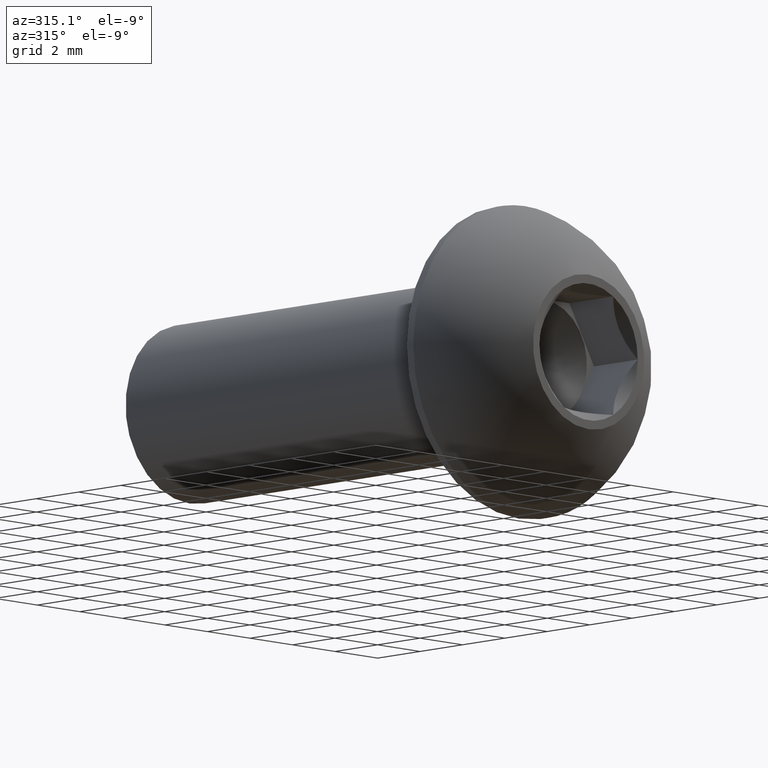
[diagram: clean part render]
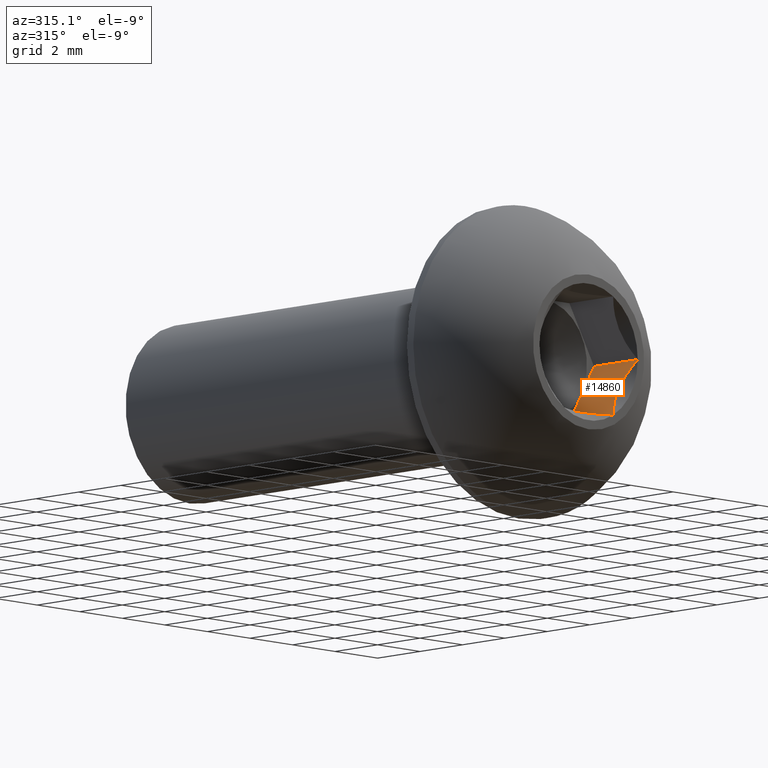
[diagram: same view with one face highlighted and labeled with its STEP entity id]
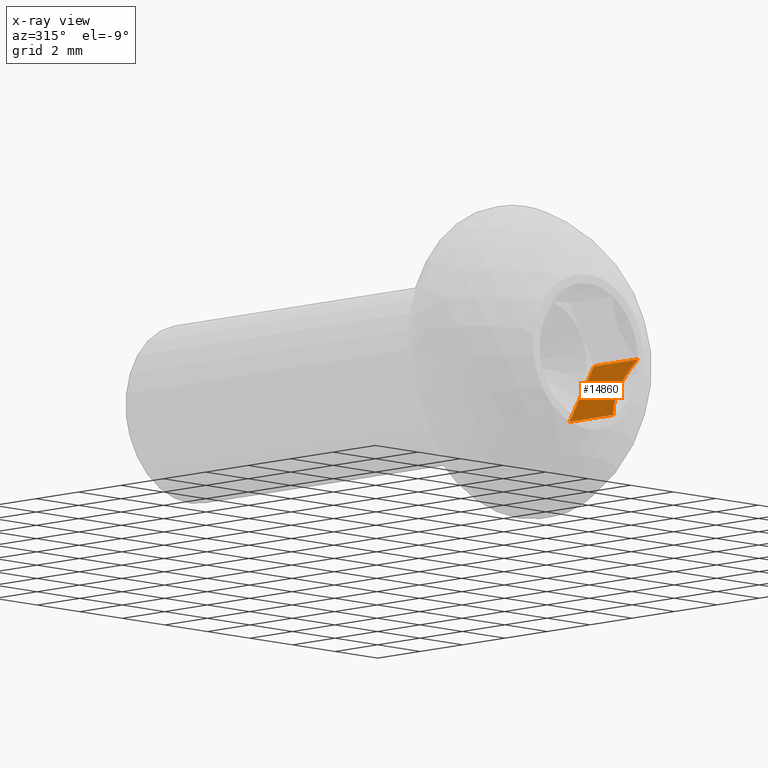
[diagram: x-ray of the same camera — body ghosted, the highlighted face saturated]
A machine part, auxiliary view. The second image highlights one B-rep face of the part: STEP entity #14860.
The next image is the same camera in x-ray: the body ghosted, the highlighted face saturated — about 1% of this face is hidden behind the body in this view.
In plain terms, the highlighted planar face has unit normal (0.866, 0, -0.5).
Its self-contained STEP definition (entity closure, byte-faithful):
#333 = VERTEX_POINT ( 'NONE', #14070 ) ;
#340 = EDGE_CURVE ( 'NONE', #333, #8891, #12877, .T. ) ;
#909 = CARTESIAN_POINT ( 'NONE',  ( 1.934985545853182200, 0.2709947582014008400, -0.6485067226708510800 ) ) ;
#959 = CARTESIAN_POINT ( 'NONE',  ( 2.309401076758477200, 0.0000000000000000000, -4.329725882211680000E-016 ) ) ;
#1144 = PLANE ( 'NONE',  #9792 ) ;
#2096 = ORIENTED_EDGE ( 'NONE', *, *, #340, .F. ) ;
#2223 = CARTESIAN_POINT ( 'NONE',  ( 1.154700538379232100, 2.062499999999999600, -2.000000000000000900 ) ) ;
#3111 = EDGE_CURVE ( 'NONE', #8891, #6651, #5275, .T. ) ;
#3194 = ORIENTED_EDGE ( 'NONE', *, *, #3220, .T. ) ;
#3220 = EDGE_CURVE ( 'NONE', #6170, #6651, #13193, .T. ) ;
#3390 = CARTESIAN_POINT ( 'NONE',  ( 1.154700538379223500, 0.0000000000000000000, -2.000000000000016000 ) ) ;
#3526 = CARTESIAN_POINT ( 'NONE',  ( 2.309401076758477200, 2.062499999999999600, -4.329725882211680000E-016 ) ) ;
#4282 = FACE_OUTER_BOUND ( 'NONE', #8942, .T. ) ;
#4416 = CARTESIAN_POINT ( 'NONE',  ( 2.126928016055928500, 0.1669275899206298700, -0.3160526121494167100 ) ) ;
#4870 = VECTOR ( 'NONE', #15351, 1000.000000000000000 ) ;
#5275 = B_SPLINE_CURVE_WITH_KNOTS ( 'NONE', 3,
 ( #959, #5684, #4416, #15358, #909, #14025, #8168, #10455, #12710, #13970, #6885, #3390 ),
 .UNSPECIFIED., .F., .F.,
 ( 4, 2, 2, 2, 2, 4 ),
 ( 2.544349856170600700E-007, 0.0005966331004600517900, 0.0008948224331972693800, 0.001193011765934487200, 0.001789390431408922300, 0.002385769096883357500 ),
 .UNSPECIFIED. ) ;
#5580 = VECTOR ( 'NONE', #11341, 1000.000000000000100 ) ;
#5623 = CARTESIAN_POINT ( 'NONE',  ( 1.154700538379232100, 2.062499999999999600, -2.000000000000000900 ) ) ;
#5684 = CARTESIAN_POINT ( 'NONE',  ( 2.219182151635831400, 0.09021892512267321000, -0.1562637621166766400 ) ) ;
#6170 = VERTEX_POINT ( 'NONE', #10480 ) ;
#6651 = VERTEX_POINT ( 'NONE', #12430 ) ;
#6885 = CARTESIAN_POINT ( 'NONE',  ( 1.245451299245582200, 0.09075076086680117200, -1.842815071353949100 ) ) ;
#8168 = CARTESIAN_POINT ( 'NONE',  ( 1.784578465267425000, 0.3091822087746347600, -0.9090194280634901200 ) ) ;
#8270 = DIRECTION ( 'NONE',  ( 0.0000000000000000000, -1.000000000000000000, 0.0000000000000000000 ) ) ;
#8883 = VECTOR ( 'NONE', #8270, 1000.000000000000000 ) ;
#8891 = VERTEX_POINT ( 'NONE', #9102 ) ;
#8942 = EDGE_LOOP ( 'NONE', ( #2096, #10080, #3194, #11764 ) ) ;
#9102 = CARTESIAN_POINT ( 'NONE',  ( 2.309401076758477200, 0.0000000000000000000, -4.329725882211680000E-016 ) ) ;
#9349 = DIRECTION ( 'NONE',  ( -0.4999999999999977200, 0.0000000000000000000, -0.8660254037844398200 ) ) ;
#9405 = EDGE_CURVE ( 'NONE', #6170, #333, #14357, .T. ) ;
#9792 = AXIS2_PLACEMENT_3D ( 'NONE', #2223, #10541, #9349 ) ;
#10080 = ORIENTED_EDGE ( 'NONE', *, *, #9405, .F. ) ;
#10455 = CARTESIAN_POINT ( 'NONE',  ( 1.633374704908074700, 0.3098252479567656400, -1.170912023301353700 ) ) ;
#10480 = CARTESIAN_POINT ( 'NONE',  ( 1.154700538379232100, 2.062499999999999600, -2.000000000000000900 ) ) ;
#10541 = DIRECTION ( 'NONE',  ( 0.8660254037844399300, 0.0000000000000000000, -0.4999999999999977800 ) ) ;
#10606 = CARTESIAN_POINT ( 'NONE',  ( 1.154700538379232100, 2.062499999999999600, -2.000000000000000900 ) ) ;
#11341 = DIRECTION ( 'NONE',  ( 0.4999999999999977800, 0.0000000000000000000, 0.8660254037844398200 ) ) ;
#11764 = ORIENTED_EDGE ( 'NONE', *, *, #3111, .F. ) ;
#12430 = CARTESIAN_POINT ( 'NONE',  ( 1.154700538379223500, 0.0000000000000000000, -2.000000000000016000 ) ) ;
#12710 = CARTESIAN_POINT ( 'NONE',  ( 1.534293179749486300, 0.2792985613756313000, -1.342526258967445400 ) ) ;
#12877 = LINE ( 'NONE', #3526, #4870 ) ;
#13193 = LINE ( 'NONE', #10606, #8883 ) ;
#13970 = CARTESIAN_POINT ( 'NONE',  ( 1.338892124838637200, 0.1685650473658849000, -1.680970813925594300 ) ) ;
#14025 = CARTESIAN_POINT ( 'NONE',  ( 1.835708118644007200, 0.3010809727709111700, -0.8204602706418642200 ) ) ;
#14070 = CARTESIAN_POINT ( 'NONE',  ( 2.309401076758477200, 2.062499999999999600, -4.329725882211680000E-016 ) ) ;
#14357 = LINE ( 'NONE', #5623, #5580 ) ;
#14860 = ADVANCED_FACE ( 'NONE', ( #4282 ), #1144, .F. ) ;
#15351 = DIRECTION ( 'NONE',  ( 0.0000000000000000000, -1.000000000000000000, 0.0000000000000000000 ) ) ;
#15358 = CARTESIAN_POINT ( 'NONE',  ( 1.983596481850121700, 0.2491289938367703100, -0.5643101117206726900 ) ) ;